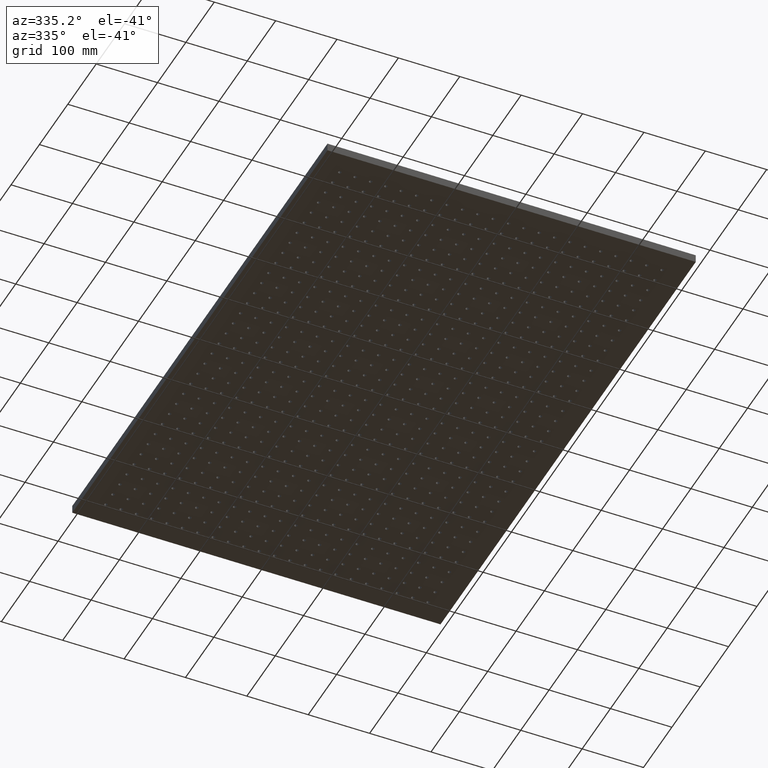
[diagram: clean part render]
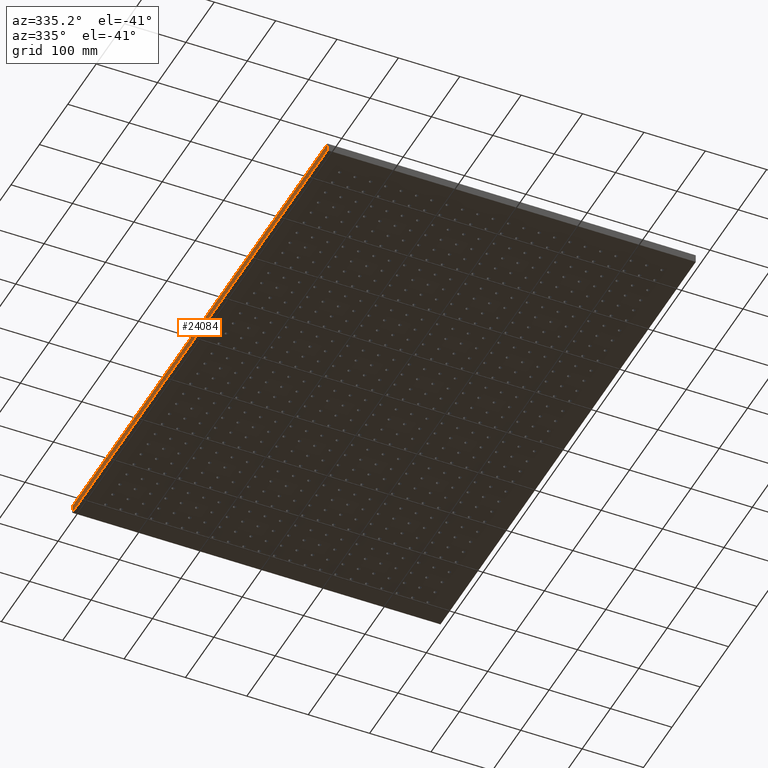
[diagram: same view with one face highlighted and labeled with its STEP entity id]
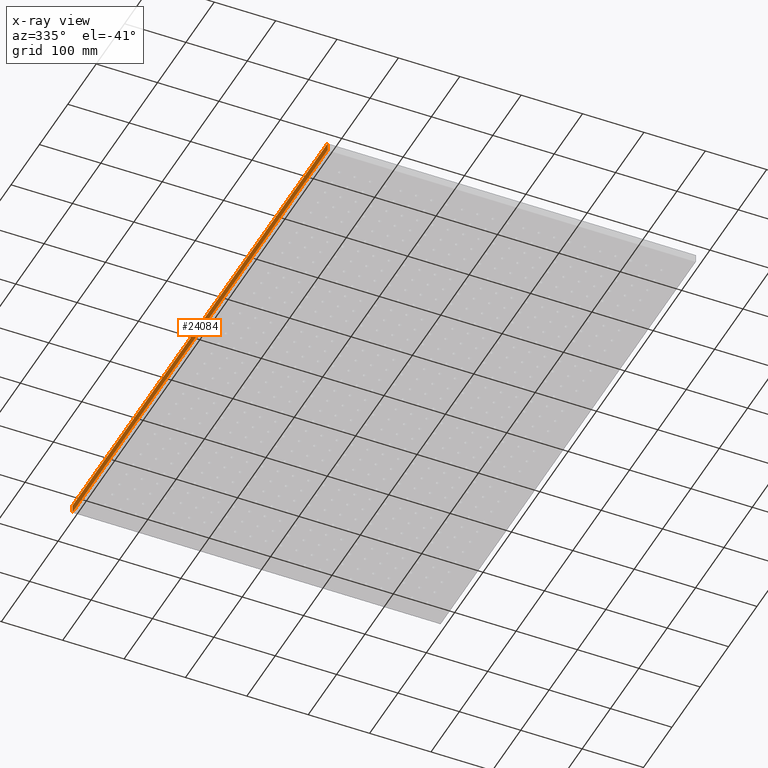
[diagram: x-ray of the same camera — body ghosted, the highlighted face saturated]
A machine part, auxiliary view. The second image highlights one B-rep face of the part: STEP entity #24084.
The next image is the same camera in x-ray: the body ghosted, the highlighted face saturated — about 0% of this face is hidden behind the body in this view.
In plain terms, the highlighted planar face has unit normal (1, 0, -0).
Its self-contained STEP definition (entity closure, byte-faithful):
#1180 = VERTEX_POINT ( 'NONE', #47614 ) ;
#2016 = LINE ( 'NONE', #13364, #44813 ) ;
#5979 = ORIENTED_EDGE ( 'NONE', *, *, #47781, .T. ) ;
#6040 = LINE ( 'NONE', #7119, #26081 ) ;
#6328 = CARTESIAN_POINT ( 'NONE',  ( -300.0000000000000600, 449.9999999999999400, 0.0000000000000000000 ) ) ;
#7119 = CARTESIAN_POINT ( 'NONE',  ( -300.0000000000000600, 449.9999999999999400, 13.00000000000000000 ) ) ;
#11147 = VERTEX_POINT ( 'NONE', #6328 ) ;
#11723 = CARTESIAN_POINT ( 'NONE',  ( -300.0000000000000600, 449.9999999999999400, 13.00000000000000000 ) ) ;
#12546 = DIRECTION ( 'NONE',  ( 1.233581138472396200E-016, -1.000000000000000000, 0.0000000000000000000 ) ) ;
#13364 = CARTESIAN_POINT ( 'NONE',  ( -299.9999999999999400, -450.0000000000000600, 13.00000000000000000 ) ) ;
#15436 = VECTOR ( 'NONE', #29753, 1000.000000000000000 ) ;
#16038 = DIRECTION ( 'NONE',  ( 1.000000000000000000, 1.233581138472396200E-016, -0.0000000000000000000 ) ) ;
#16120 = EDGE_CURVE ( 'NONE', #11147, #1180, #46198, .T. ) ;
#20558 = EDGE_CURVE ( 'NONE', #32652, #1180, #2016, .T. ) ;
#20692 = CARTESIAN_POINT ( 'NONE',  ( -299.9999999999999400, -450.0000000000000600, 13.00000000000000000 ) ) ;
#23230 = EDGE_LOOP ( 'NONE', ( #42436, #51421, #50518, #5979 ) ) ;
#24084 = ADVANCED_FACE ( 'NONE', ( #52597 ), #32654, .F. ) ;
#25442 = CARTESIAN_POINT ( 'NONE',  ( -300.0000000000000600, 449.9999999999999400, 13.00000000000000000 ) ) ;
#25590 = AXIS2_PLACEMENT_3D ( 'NONE', #11723, #16038, #45918 ) ;
#26081 = VECTOR ( 'NONE', #32726, 1000.000000000000000 ) ;
#26769 = LINE ( 'NONE', #25442, #15436 ) ;
#27779 = EDGE_CURVE ( 'NONE', #52445, #32652, #26769, .T. ) ;
#29753 = DIRECTION ( 'NONE',  ( 1.233581138472396200E-016, -1.000000000000000000, 0.0000000000000000000 ) ) ;
#32652 = VERTEX_POINT ( 'NONE', #20692 ) ;
#32654 = PLANE ( 'NONE',  #25590 ) ;
#32726 = DIRECTION ( 'NONE',  ( -0.0000000000000000000, -0.0000000000000000000, -1.000000000000000000 ) ) ;
#36179 = VECTOR ( 'NONE', #12546, 1000.000000000000000 ) ;
#38419 = CARTESIAN_POINT ( 'NONE',  ( -300.0000000000000600, 449.9999999999999400, 13.00000000000000000 ) ) ;
#38957 = DIRECTION ( 'NONE',  ( -0.0000000000000000000, -0.0000000000000000000, -1.000000000000000000 ) ) ;
#42436 = ORIENTED_EDGE ( 'NONE', *, *, #16120, .T. ) ;
#42466 = CARTESIAN_POINT ( 'NONE',  ( -300.0000000000000600, 449.9999999999999400, 0.0000000000000000000 ) ) ;
#44813 = VECTOR ( 'NONE', #38957, 1000.000000000000000 ) ;
#45918 = DIRECTION ( 'NONE',  ( -1.233581138472396200E-016, 1.000000000000000000, 0.0000000000000000000 ) ) ;
#46198 = LINE ( 'NONE', #42466, #36179 ) ;
#47614 = CARTESIAN_POINT ( 'NONE',  ( -299.9999999999999400, -450.0000000000000600, 0.0000000000000000000 ) ) ;
#47781 = EDGE_CURVE ( 'NONE', #52445, #11147, #6040, .T. ) ;
#50518 = ORIENTED_EDGE ( 'NONE', *, *, #27779, .F. ) ;
#51421 = ORIENTED_EDGE ( 'NONE', *, *, #20558, .F. ) ;
#52445 = VERTEX_POINT ( 'NONE', #38419 ) ;
#52597 = FACE_OUTER_BOUND ( 'NONE', #23230, .T. ) ;